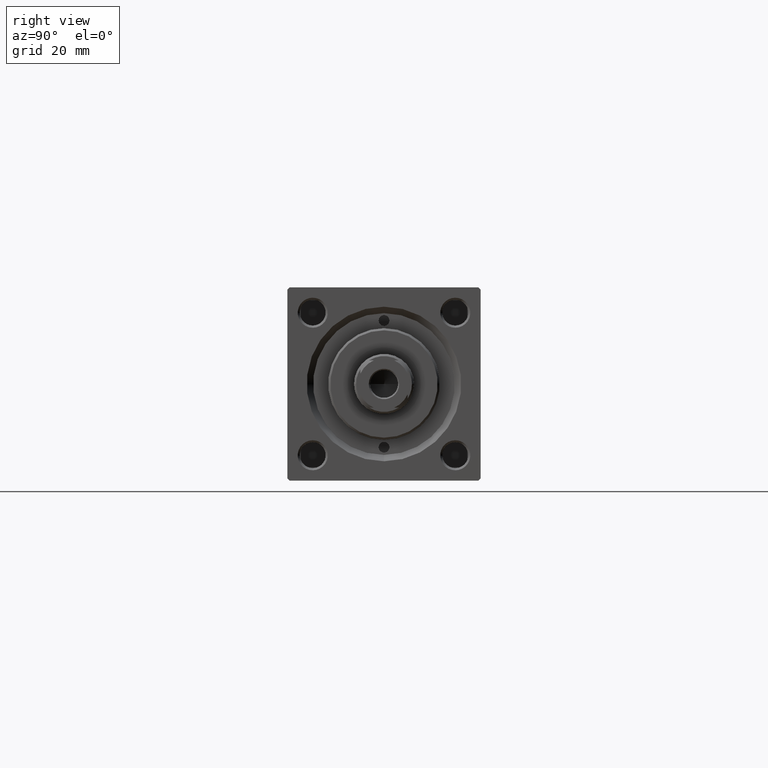
[diagram: clean part render]
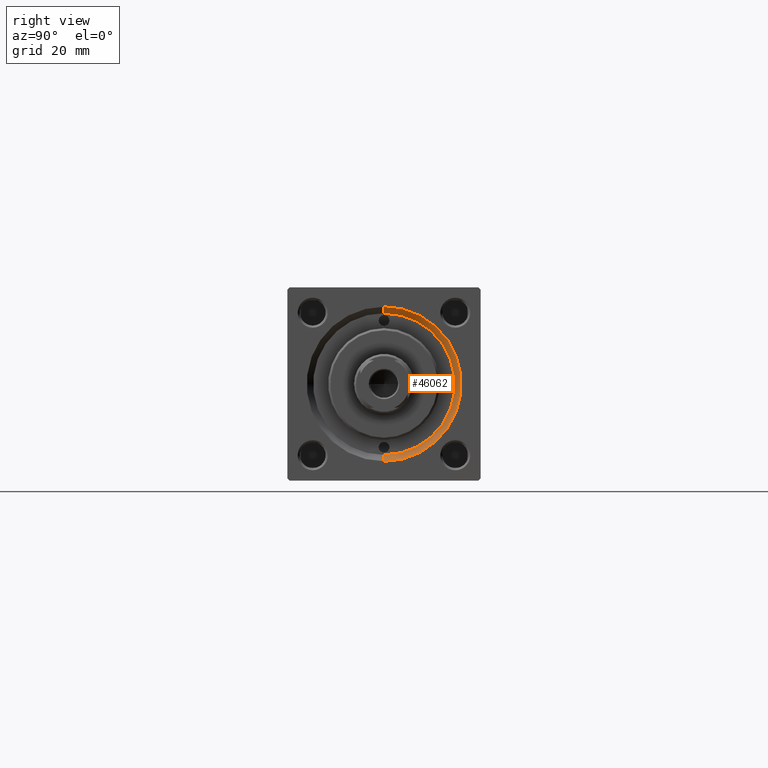
[diagram: same view with one face highlighted and labeled with its STEP entity id]
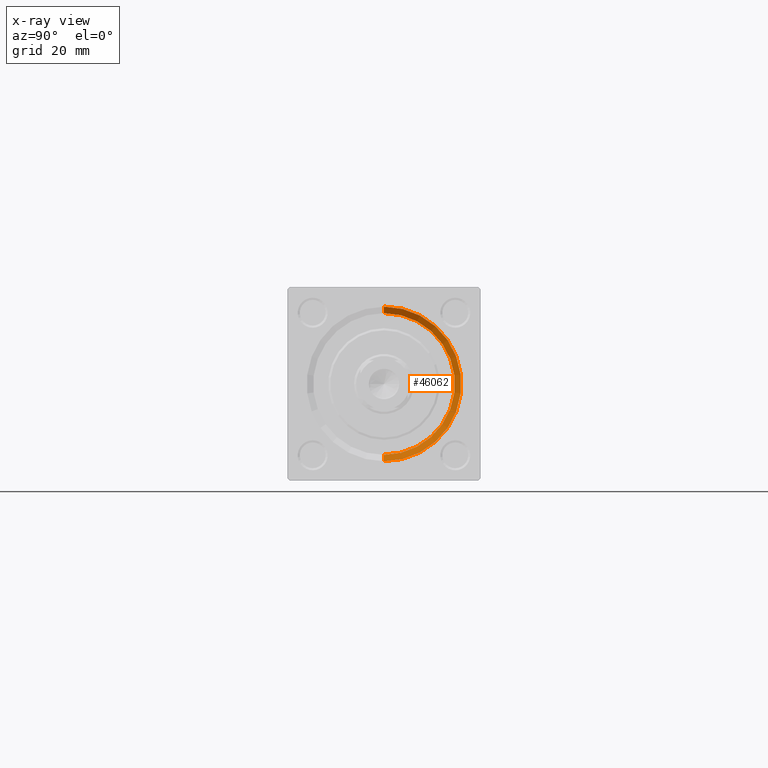
[diagram: x-ray of the same camera — body ghosted, the highlighted face saturated]
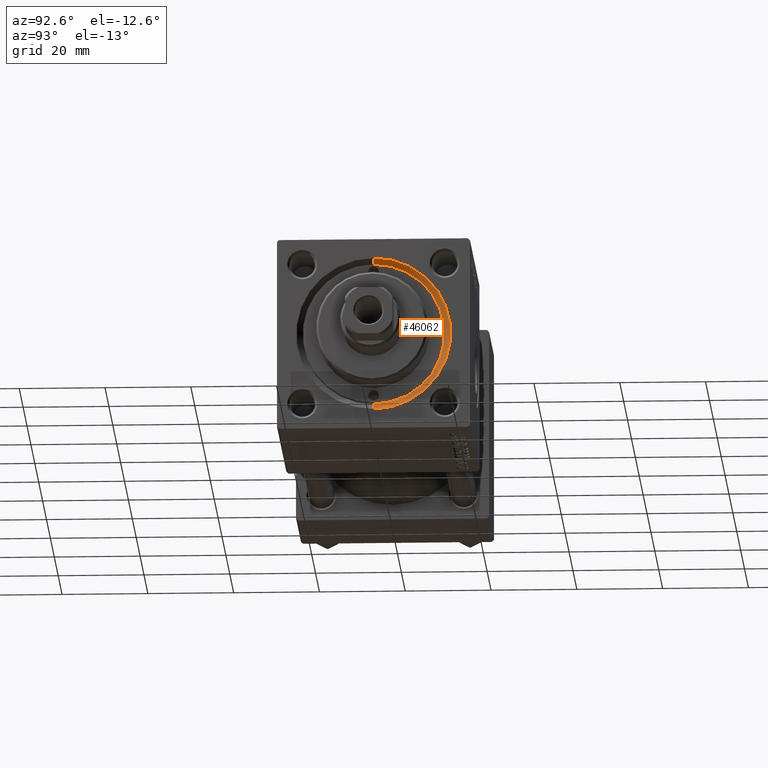
[diagram: same view with one face highlighted and labeled with its STEP entity id]
A machine part, right view. The second image highlights one B-rep face of the part: STEP entity #46062.
The next image is the same camera in x-ray: the body ghosted, the highlighted face saturated — about 0% of this face is hidden behind the body in this view.
A second angle (auxiliary view) of the same face is appended — the face is thin or edge-on in the first view.
In plain terms, the highlighted conical surface has half-angle 45 deg.
Its self-contained STEP definition (entity closure, byte-faithful):
#196 = VERTEX_POINT ( 'NONE', #46928 ) ;
#2053 = FACE_OUTER_BOUND ( 'NONE', #23186, .T. ) ;
#4503 = ORIENTED_EDGE ( 'NONE', *, *, #18363, .T. ) ;
#5172 = CARTESIAN_POINT ( 'NONE',  ( 121.5000000000000142, 0.000000000000000000, -16.50000000000000000 ) ) ;
#5849 = CARTESIAN_POINT ( 'NONE',  ( 121.5000000000000142, 0.000000000000000000, -16.50000000000000000 ) ) ;
#11453 = CARTESIAN_POINT ( 'NONE',  ( 121.5000000000000142, 2.020667218593133100E-15, 16.50000000000000000 ) ) ;
#12198 = VECTOR ( 'NONE', #30044, 1000.000000000000114 ) ;
#17146 = AXIS2_PLACEMENT_3D ( 'NONE', #37416, #29292, #49125 ) ;
#17286 = CONICAL_SURFACE ( 'NONE', #31134, 16.50000000000000000, 0.7853981633974482790 ) ;
#17587 = CARTESIAN_POINT ( 'NONE',  ( 121.5000000000000142, 0.000000000000000000, 0.000000000000000000 ) ) ;
#18363 = EDGE_CURVE ( 'NONE', #32637, #28820, #25973, .T. ) ;
#18436 = CARTESIAN_POINT ( 'NONE',  ( 123.0000000000000142, 0.000000000000000000, -18.00000000000000355 ) ) ;
#19339 = LINE ( 'NONE', #11453, #44862 ) ;
#20037 = EDGE_CURVE ( 'NONE', #49795, #28820, #38275, .T. ) ;
#21586 = DIRECTION ( 'NONE',  ( 1.000000000000000000, 0.000000000000000000, 0.000000000000000000 ) ) ;
#22036 = EDGE_CURVE ( 'NONE', #196, #49795, #19339, .T. ) ;
#23186 = EDGE_LOOP ( 'NONE', ( #44294, #37755, #4503, #29625 ) ) ;
#23914 = DIRECTION ( 'NONE',  ( 0.7071067811865474617, 8.659560562354932858E-17, 0.7071067811865474617 ) ) ;
#24079 = CARTESIAN_POINT ( 'NONE',  ( 123.0000000000000142, 2.204364238465235822E-15, 18.00000000000000355 ) ) ;
#25973 = LINE ( 'NONE', #5849, #12198 ) ;
#27232 = DIRECTION ( 'NONE',  ( 0.000000000000000000, 0.000000000000000000, -1.000000000000000000 ) ) ;
#28820 = VERTEX_POINT ( 'NONE', #18436 ) ;
#29292 = DIRECTION ( 'NONE',  ( -1.000000000000000000, 0.000000000000000000, -0.000000000000000000 ) ) ;
#29625 = ORIENTED_EDGE ( 'NONE', *, *, #20037, .F. ) ;
#30044 = DIRECTION ( 'NONE',  ( 0.7071067811865474617, 0.000000000000000000, -0.7071067811865474617 ) ) ;
#30054 = DIRECTION ( 'NONE',  ( 1.000000000000000000, 0.000000000000000000, 0.000000000000000000 ) ) ;
#30527 = EDGE_CURVE ( 'NONE', #32637, #196, #35563, .T. ) ;
#31134 = AXIS2_PLACEMENT_3D ( 'NONE', #17587, #30054, #27232 ) ;
#32637 = VERTEX_POINT ( 'NONE', #5172 ) ;
#35563 = CIRCLE ( 'NONE', #44514, 16.50000000000000000 ) ;
#37416 = CARTESIAN_POINT ( 'NONE',  ( 123.0000000000000142, 0.000000000000000000, 0.000000000000000000 ) ) ;
#37755 = ORIENTED_EDGE ( 'NONE', *, *, #30527, .F. ) ;
#38275 = CIRCLE ( 'NONE', #17146, 18.00000000000000355 ) ;
#44294 = ORIENTED_EDGE ( 'NONE', *, *, #22036, .F. ) ;
#44514 = AXIS2_PLACEMENT_3D ( 'NONE', #49051, #21586, #48802 ) ;
#44862 = VECTOR ( 'NONE', #23914, 1000.000000000000114 ) ;
#46062 = ADVANCED_FACE ( 'NONE', ( #2053 ), #17286, .F. ) ;
#46928 = CARTESIAN_POINT ( 'NONE',  ( 121.5000000000000142, 2.020667218593133100E-15, 16.50000000000000000 ) ) ;
#48802 = DIRECTION ( 'NONE',  ( 0.000000000000000000, 0.000000000000000000, 1.000000000000000000 ) ) ;
#49051 = CARTESIAN_POINT ( 'NONE',  ( 121.5000000000000142, 0.000000000000000000, 0.000000000000000000 ) ) ;
#49125 = DIRECTION ( 'NONE',  ( 0.000000000000000000, 0.000000000000000000, 1.000000000000000000 ) ) ;
#49795 = VERTEX_POINT ( 'NONE', #24079 ) ;